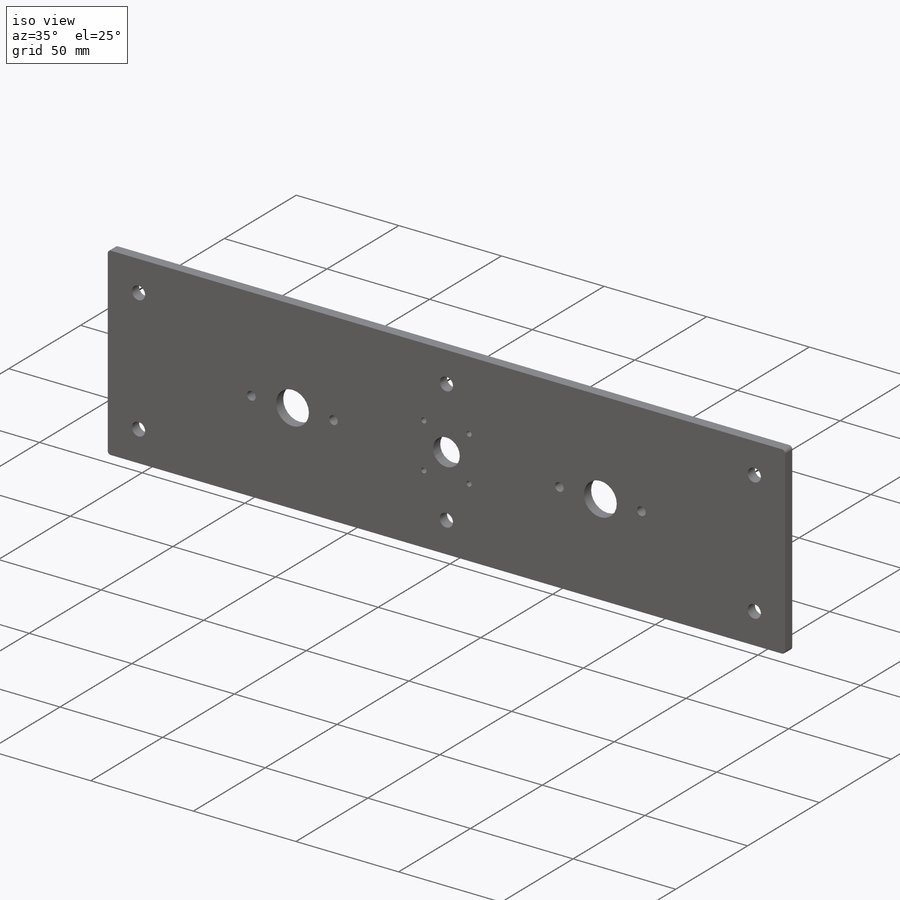
[diagram: iso view]
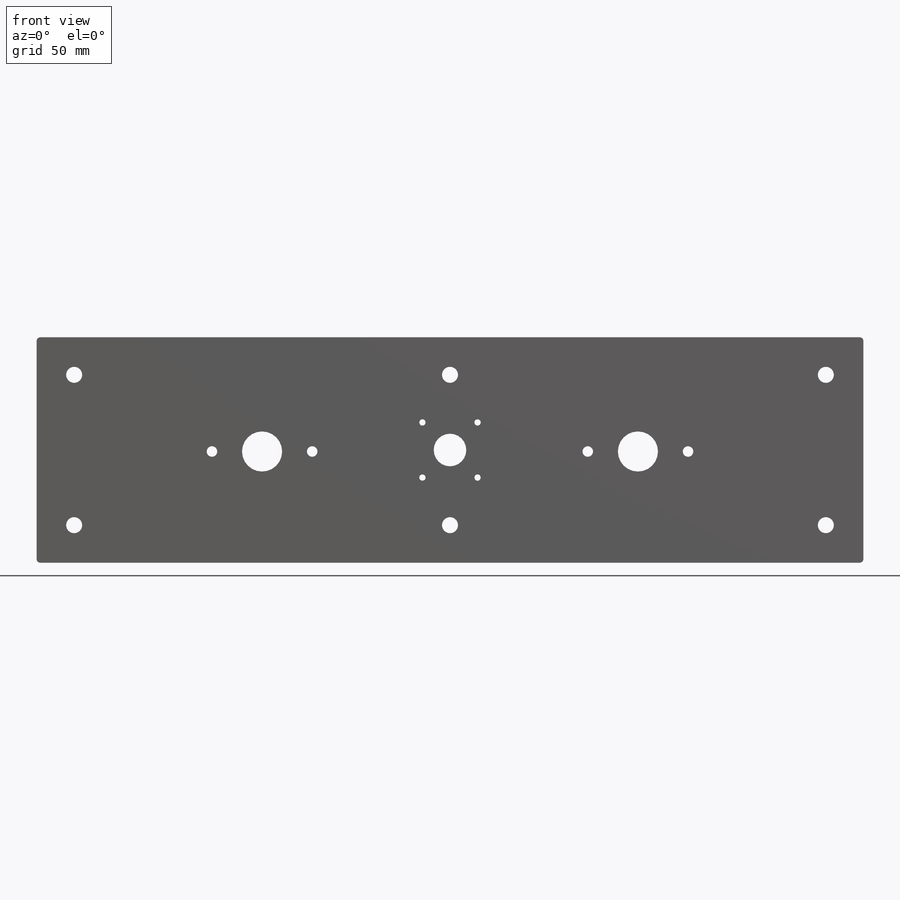
[diagram: front view]
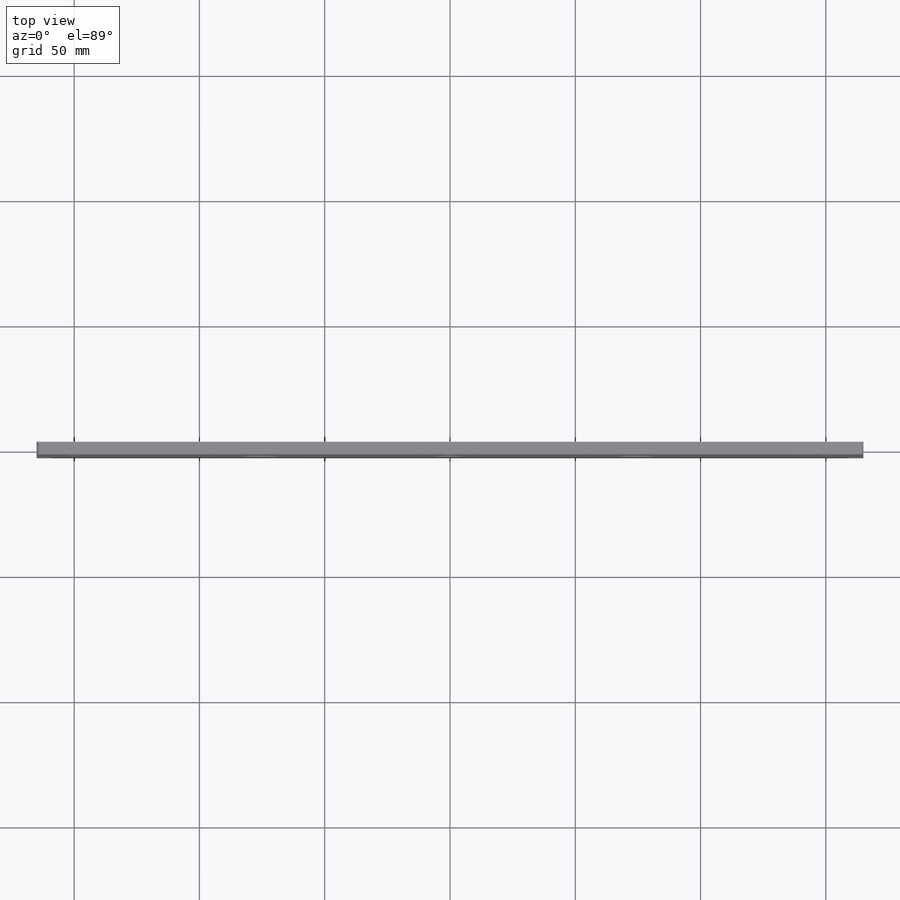
[diagram: top view]
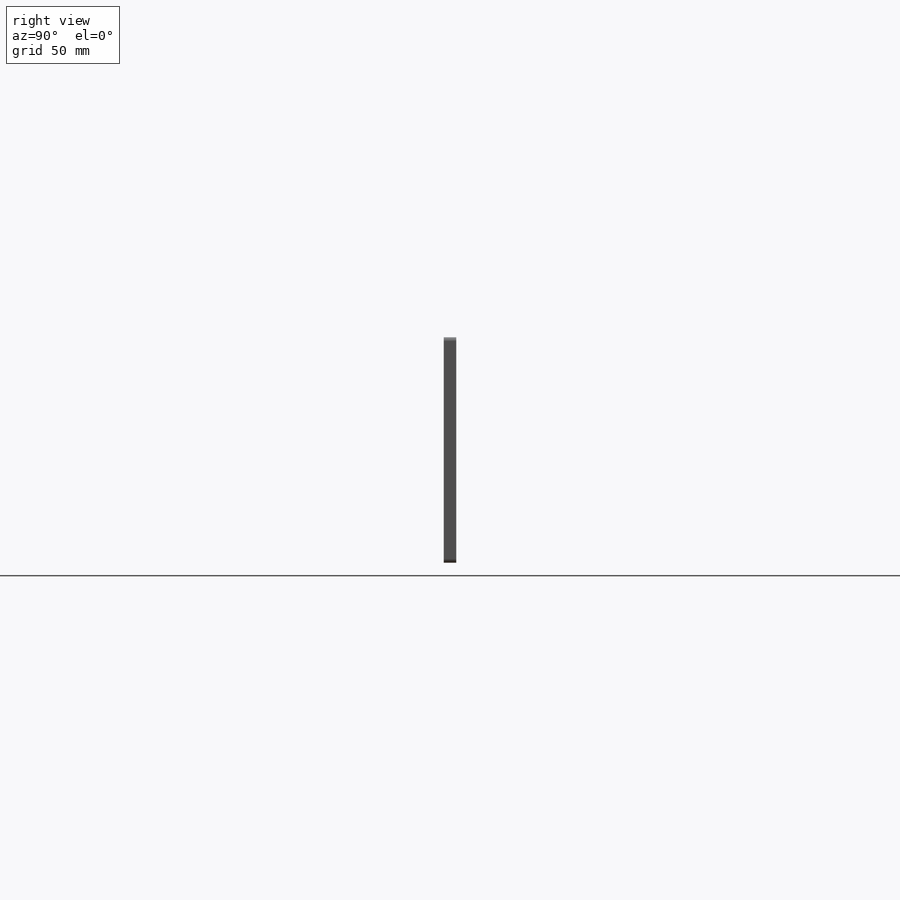
[diagram: right view]
SOLIDWORKS PART (.sldprt)
format: sldprt  version: not decoded by parser v0  size: 352,256 bytes
history: native  units: mm
features: sketch x9, thread x6, hole x3, cut_extrude x2, material x1, extrude x1, mirror x1, fillet x1 (+12 scaffold rows collapsed)
feature tree (36):
  scaffold x12  (default folders/planes/origin — collapsed)
  material  "Material <not specified>"
  sketch  "Sketch1"  dims[D1=330.0mm D2=90.0mm]
  extrude  "Boss-Extrude1"  Depth=5mm
  hole  "M6 Clearance Hole1"  Diameter=6.4mm Depth=10mm
  sketch  "Sketch6"  dims[D1=15.0mm D2=15.0mm D3=15.0mm D4=15.0mm]
  sketch  "Sketch5"  dims[hole-wizard template sketch: 47 standard entries collapsed; hole parameters kept: c15.Hole Depth=10.0mm c15.D3=~14.816244mm c15.Drill Angle=118.0deg]
  sketch  "Sketch3"  dims[c1.D1=16.0mm c1.D2=4.2mm c1.D4=4.2mm c1.D7=13.0mm c1.D3=80.0mm c2.D4=110.0mm c2.D5=18.0mm c2.D6=18.0mm c2.D3=0.6mm c2.D7=75.0mm]
  cut_extrude  "Cut-Extrude2"  [1 undecoded]
  hole  "M5x0.8 Tapped Hole1"  Diameter=4.2mm Depth=5mm
  sketch  "Sketch8"  dims[D1=20.0mm D2=20.0mm]
  sketch  "Sketch7"  dims[hole-wizard template sketch: 60 standard entries collapsed; hole parameters kept: c18.Thru Tap Drill Depth=5.0mm]
  thread  "Hole Thread1"  Diameter=5mm  [1 undecoded]
  thread  "Hole Thread2"  Diameter=5mm  [1 undecoded]
  mirror  "Mirror1"
  sketch  "Sketch4"  dims[c1.D3=3.1mm c1.D4=2.5mm c1.D5=2.5mm c1.D6=2.5mm c2.D3=2.5mm c2.D7=8.0mm c2.D1=22.0mm c2.D2=22.0mm c3.D3=22.0mm]
  cut_extrude  "Cut-Extrude3"  [1 undecoded]
  hole  "M3x0.5 Tapped Hole1"  Diameter=2.5mm Depth=5mm
  sketch  "Sketch10"  dims[D1=22.0mm D2=22.0mm D3=11.0mm D4=11.0mm]
  sketch  "Sketch9"  dims[hole-wizard template sketch: 61 standard entries collapsed; hole parameters above]
  thread  "Hole Thread3"  Diameter=3mm  [1 undecoded]
  thread  "Hole Thread4"  Diameter=3mm  [1 undecoded]
  thread  "Hole Thread5"  Diameter=3mm  [1 undecoded]
  thread  "Hole Thread6"  Diameter=3mm  [1 undecoded]
  fillet  "Fillet1"  Radius=1.5mm
decode coverage: 20 of 23 modeling features carry decoded parameters
note: ~ marks probable driven/reference dimensions
note: 8 parameter values undecoded
note: suppression state not decoded; provenance and decode notes live in map.json
